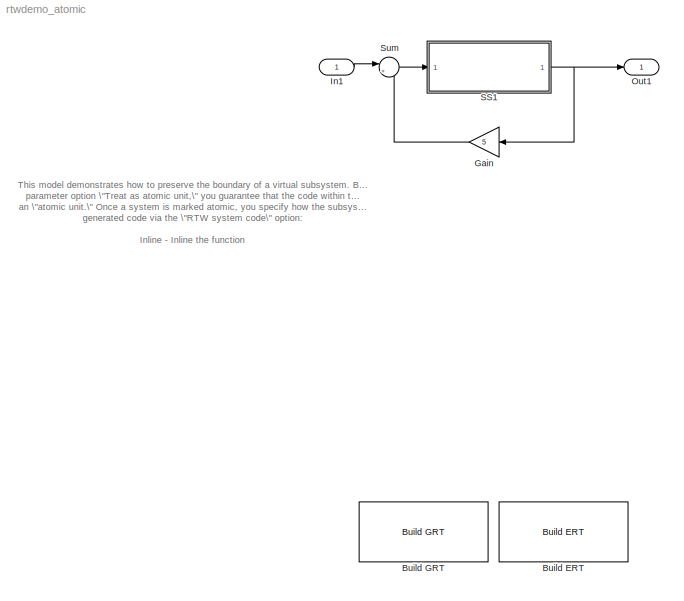
MODEL rtwdemo_atomic
KIND model
BLOCK [Reference] Build ERT  REF=rtwdemowidgets/Build ERT
  Ports = []
  ShowPortLabels = on
  SourceBlock = rtwdemowidgets/Build ERT
  attrib_overrides = {}
BLOCK [Reference] Build GRT  REF=rtwdemowidgets/Build GRT
  Ports = []
  ShowPortLabels = on
  SourceBlock = rtwdemowidgets/Build GRT
  attrib_overrides = {}
BLOCK [Gain] Gain
  Gain = 5
BLOCK [Inport] In1
  IconDisplay = Port number
  LatchInput = off
  Port = 1
BLOCK [Outport] Out1
  BusOutputAsStruct = off
  IconDisplay = Port number
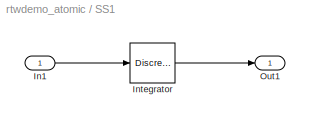
BLOCK [SubSystem] SS1
  MinAlgLoopOccurrences = off
  Ports = [1, 1]
  PropExecContextAcrossSSBoundary = on
  RTWFcnName = myfun
  RTWFcnNameOpts = User specified
  RTWFileName = myfile
  RTWSystemCode = Reusable function
  TreatAsAtomicUnit = on
BLOCK [Inport] SS1/In1
  IconDisplay = Port number
  LatchInput = off
  Port = 1
BLOCK [DiscreteIntegrator] SS1/Integrator
  ExternalReset = none
  ICPrevOutput = DiscIntNeverNeededParam
  ICPrevScaledInput = DiscIntNeverNeededParam
  InitialConditionSource = internal
  IntegratorMethod = Integration: Forward Euler
  Ports = [1, 1]
BLOCK [Outport] SS1/Out1
  BusOutputAsStruct = off
  IconDisplay = Port number
BLOCK [Sum] Sum
  IconShape = round
  InputSameDT = off
  Inputs = |++
  OutDataTypeMode = Inherit via internal rule
  Ports = [2, 1]
  SaturateOnIntegerOverflow = off
ANNOTATION (root): This model demonstrates how to preserve the boundary of a virtual subsystem. By selecting the subsystem\nparameter option \"Treat as atomic unit,\" you guarantee that the code within that subsystem executes as\nan \"atomic unit.\" Once a system is marked atomic, you specify how the subsystem is represented in the\ngenerated code via the \"RTW system code\" option:\n\nInline - Inline the function\n...<+765ch>
LINE Gain:1 -> Sum:2
LINE In1:1 -> Sum:1
LINE SS1/In1:1 -> SS1/Integrator:1
LINE SS1/Integrator:1 -> SS1/Out1:1
NET SS1:1 -> Gain:1, Out1:1
LINE Sum:1 -> SS1:1
note: NET lines group one-source signal fan-out (src -> all destinations, sorted); 1:1 wires keep LINE
